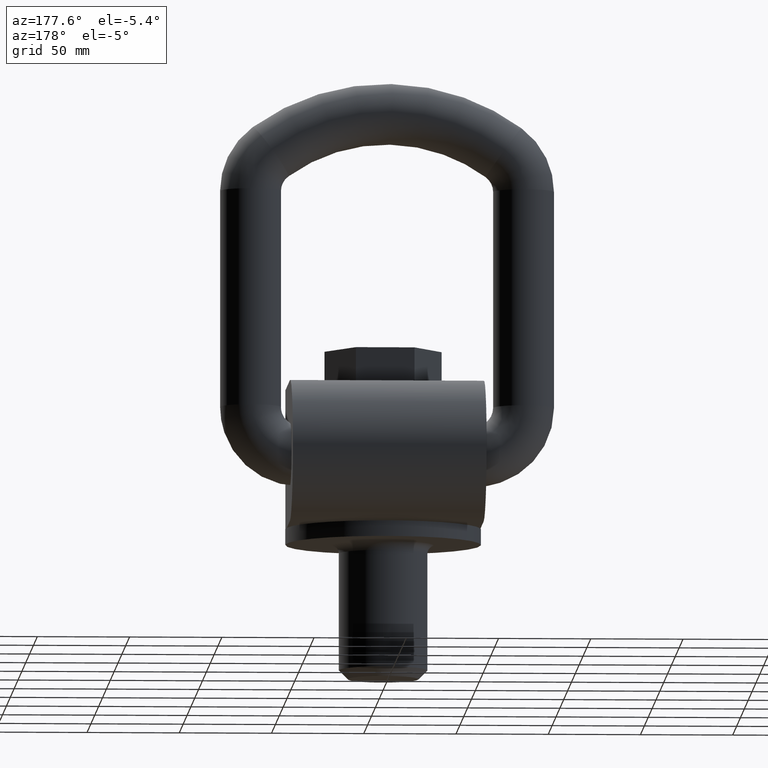
[diagram: clean part render]
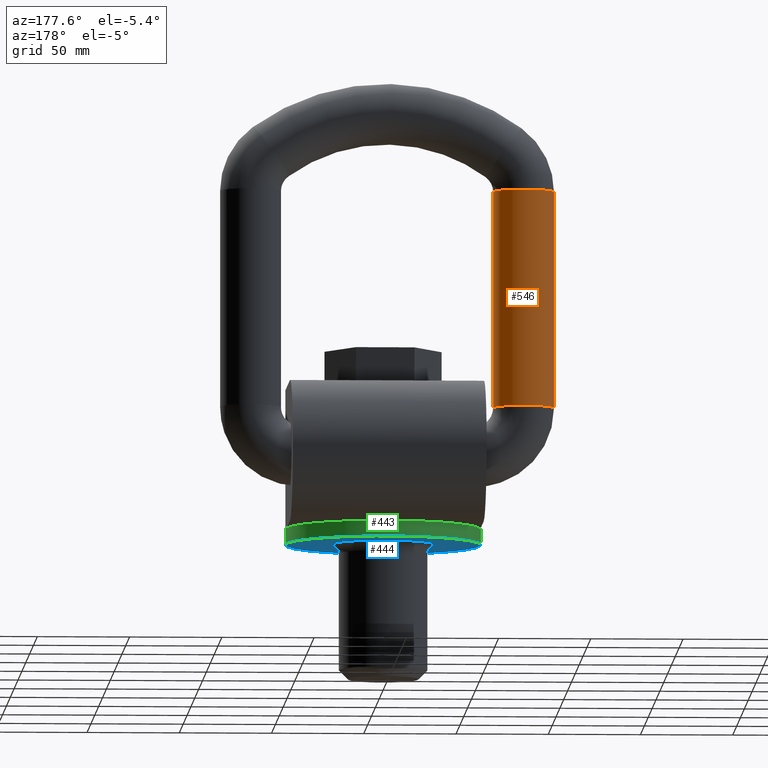
[diagram: same view with three faces highlighted in distinct colors, each labeled with its STEP entity id]
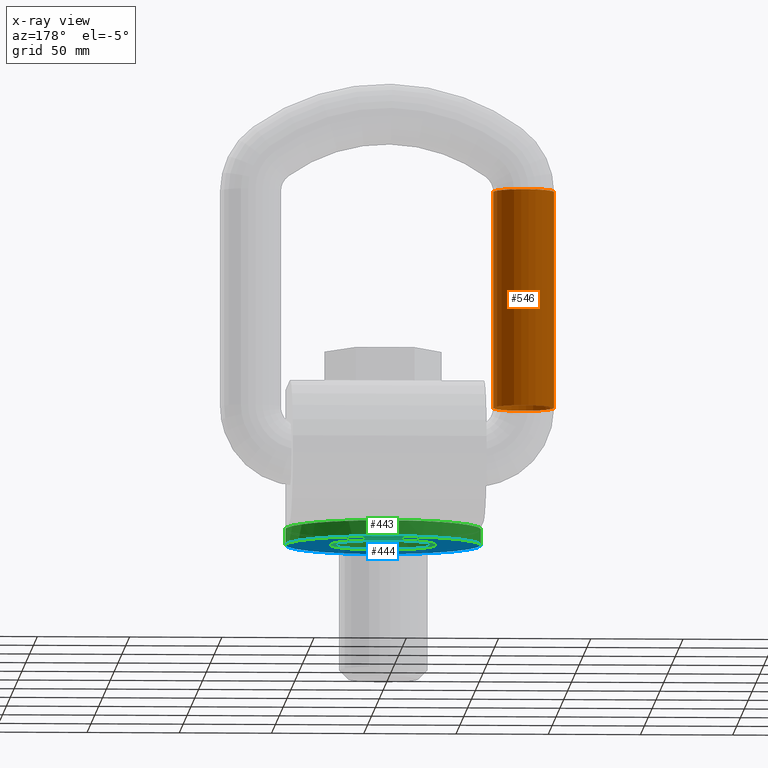
[diagram: x-ray of the same camera — body ghosted, the three highlighted faces saturated]
A machine part, auxiliary view with three faces highlighted in distinct colors.
The next image is the same camera in x-ray (body ghosted, the three faces saturated) — at least one of them is partly hidden behind the body in this view.
Their STEP definitions:

[orange] entity #546 — the highlighted cylindrical surface (bore or boss wall) has radius 16.5 mm, axis along (0, 0, -1).
#546=ADVANCED_FACE('',(#629,#630),#567,.T.);
#567=CYLINDRICAL_SURFACE('',#2625,16.5);
#629=FACE_BOUND('',#795,.T.);
#630=FACE_BOUND('',#796,.T.);
#795=EDGE_LOOP('',(#1775));
#796=EDGE_LOOP('',(#1776));
#1150=CIRCLE('',#2622,16.5);
#1151=CIRCLE('',#2624,16.5);
#1775=ORIENTED_EDGE('',*,*,#2311,.T.);
#1776=ORIENTED_EDGE('',*,*,#2310,.F.);
#1995=VERTEX_POINT('',#5114);
#1996=VERTEX_POINT('',#5117);
#2310=EDGE_CURVE('',#1995,#1995,#1150,.T.);
#2311=EDGE_CURVE('',#1996,#1996,#1151,.T.);
#2622=AXIS2_PLACEMENT_3D('',#5113,#3076,#3077);
#2624=AXIS2_PLACEMENT_3D('',#5116,#3080,#3081);
#2625=AXIS2_PLACEMENT_3D('',#5118,#3082,#3083);
#3076=DIRECTION('',(-1.66533453693773E-16,0.,-1.));
#3077=DIRECTION('',(-1.,0.,0.));
#3080=DIRECTION('',(-1.66533453693773E-16,0.,-1.));
#3081=DIRECTION('',(-1.,0.,0.));
#3082=DIRECTION('',(0.,0.,-1.));
#3083=DIRECTION('',(-1.,0.,0.));
#5113=CARTESIAN_POINT('',(-74.,51.,61.5));
#5114=CARTESIAN_POINT('',(-90.5,51.,61.5));
#5116=CARTESIAN_POINT('',(-74.,51.,178.992307237088));
#5117=CARTESIAN_POINT('',(-90.5,51.,178.992307237088));
#5118=CARTESIAN_POINT('',(-74.,51.,178.992307237088));

[blue] entity #444 — the highlighted planar face has unit normal (0, 0, -1).
#267=PLANE('',#2559);
#444=ADVANCED_FACE('',(#601,#602),#267,.T.);
#601=FACE_BOUND('',#679,.T.);
#602=FACE_BOUND('',#680,.T.);
#679=EDGE_LOOP('',(#1347));
#680=EDGE_LOOP('',(#1348));
#1140=CIRCLE('',#2555,53.);
#1142=CIRCLE('',#2558,28.8);
#1347=ORIENTED_EDGE('',*,*,#2132,.T.);
#1348=ORIENTED_EDGE('',*,*,#2130,.T.);
#1894=VERTEX_POINT('',#3900);
#1895=VERTEX_POINT('',#3904);
#2130=EDGE_CURVE('',#1894,#1894,#1140,.T.);
#2132=EDGE_CURVE('',#1895,#1895,#1142,.T.);
#2555=AXIS2_PLACEMENT_3D('',#3899,#2819,#2820);
#2558=AXIS2_PLACEMENT_3D('',#3903,#2825,#2826);
#2559=AXIS2_PLACEMENT_3D('',#3905,#2827,#2828);
#2819=DIRECTION('',(0.,0.,-1.));
#2820=DIRECTION('',(1.,1.22464679914735E-16,0.));
#2825=DIRECTION('',(0.,0.,1.));
#2826=DIRECTION('',(-1.,0.,0.));
#2827=DIRECTION('',(0.,0.,-1.));
#2828=DIRECTION('',(-1.,0.,0.));
#3899=CARTESIAN_POINT('',(0.,0.,-8.49999999999993));
#3900=CARTESIAN_POINT('',(53.,6.49062803548097E-15,-8.49999999999993));
#3903=CARTESIAN_POINT('',(0.,0.,-8.49999999999993));
#3904=CARTESIAN_POINT('',(-28.8,0.,-8.49999999999993));
#3905=CARTESIAN_POINT('',(0.,0.,-8.49999999999993));

[green] entity #443 — the highlighted cylindrical surface (bore or boss wall) has radius 53 mm, axis along (0, 0, 1).
#443=ADVANCED_FACE('',(#599,#600),#554,.T.);
#554=CYLINDRICAL_SURFACE('',#2557,53.);
#599=FACE_BOUND('',#677,.T.);
#600=FACE_BOUND('',#678,.T.);
#677=EDGE_LOOP('',(#1340));
#678=EDGE_LOOP('',(#1341,#1342,#1343,#1344,#1345,#1346));
#1131=CIRCLE('',#2521,53.);
#1132=CIRCLE('',#2523,53.);
#1133=CIRCLE('',#2525,53.);
#1138=CIRCLE('',#2551,53.);
#1139=CIRCLE('',#2553,53.);
#1140=CIRCLE('',#2555,53.);
#1141=CIRCLE('',#2556,53.);
#1340=ORIENTED_EDGE('',*,*,#2130,.F.);
#1341=ORIENTED_EDGE('',*,*,#2073,.T.);
#1342=ORIENTED_EDGE('',*,*,#2128,.T.);
#1343=ORIENTED_EDGE('',*,*,#2076,.T.);
#1344=ORIENTED_EDGE('',*,*,#2131,.T.);
#1345=ORIENTED_EDGE('',*,*,#2079,.T.);
#1346=ORIENTED_EDGE('',*,*,#2129,.T.);
#1858=VERTEX_POINT('',#3782);
#1859=VERTEX_POINT('',#3783);
#1860=VERTEX_POINT('',#3788);
#1861=VERTEX_POINT('',#3789);
#1863=VERTEX_POINT('',#3795);
#1864=VERTEX_POINT('',#3796);
#1894=VERTEX_POINT('',#3900);
#2073=EDGE_CURVE('',#1858,#1859,#1131,.T.);
#2076=EDGE_CURVE('',#1860,#1861,#1132,.T.);
#2079=EDGE_CURVE('',#1863,#1864,#1133,.T.);
#2128=EDGE_CURVE('',#1859,#1860,#1138,.T.);
#2129=EDGE_CURVE('',#1864,#1858,#1139,.T.);
#2130=EDGE_CURVE('',#1894,#1894,#1140,.T.);
#2131=EDGE_CURVE('',#1861,#1863,#1141,.T.);
#2521=AXIS2_PLACEMENT_3D('',#3781,#2703,#2704);
#2523=AXIS2_PLACEMENT_3D('',#3787,#2709,#2710);
#2525=AXIS2_PLACEMENT_3D('',#3794,#2715,#2716);
#2551=AXIS2_PLACEMENT_3D('',#3895,#2811,#2812);
#2553=AXIS2_PLACEMENT_3D('',#3897,#2815,#2816);
#2555=AXIS2_PLACEMENT_3D('',#3899,#2819,#2820);
#2556=AXIS2_PLACEMENT_3D('',#3901,#2821,#2822);
#2557=AXIS2_PLACEMENT_3D('',#3902,#2823,#2824);
#2703=DIRECTION('',(0.,0.,-1.));
#2704=DIRECTION('',(1.,1.22464679914735E-16,0.));
#2709=DIRECTION('',(0.,0.,-1.));
#2710=DIRECTION('',(1.,1.22464679914735E-16,0.));
#2715=DIRECTION('',(0.,0.,-1.));
#2716=DIRECTION('',(1.,1.22464679914735E-16,0.));
#2811=DIRECTION('',(0.,0.,-1.));
#2812=DIRECTION('',(1.,1.22464679914735E-16,0.));
#2815=DIRECTION('',(0.,0.,-1.));
#2816=DIRECTION('',(1.,1.22464679914735E-16,0.));
#2819=DIRECTION('',(0.,0.,-1.));
#2820=DIRECTION('',(1.,1.22464679914735E-16,0.));
#2821=DIRECTION('',(0.,0.,-1.));
#2822=DIRECTION('',(1.,1.22464679914735E-16,0.));
#2823=DIRECTION('',(0.,0.,1.));
#2824=DIRECTION('',(1.,0.,0.));
#3781=CARTESIAN_POINT('',(0.,0.,6.69539461904587E-14));
#3782=CARTESIAN_POINT('',(52.5,-7.262919523167,1.59074743239382E-16));
#3783=CARTESIAN_POINT('',(-52.5,-7.262919523167,1.59074743239382E-16));
#3787=CARTESIAN_POINT('',(0.,0.,6.69539461904587E-14));
#3788=CARTESIAN_POINT('',(-52.5,7.26291952316699,2.17913611927875E-15));
#3789=CARTESIAN_POINT('',(-20.795131641805,48.75,7.94860999328799E-15));
#3794=CARTESIAN_POINT('',(0.,0.,6.69539461904587E-14));
#3795=CARTESIAN_POINT('',(20.795131641805,48.75,7.94860999328799E-15));
#3796=CARTESIAN_POINT('',(52.5,7.26291952316699,6.69539461904587E-14));
#3895=CARTESIAN_POINT('',(0.,0.,6.69539461904587E-14));
#3897=CARTESIAN_POINT('',(0.,0.,6.69539461904587E-14));
#3899=CARTESIAN_POINT('',(0.,0.,-8.49999999999993));
#3900=CARTESIAN_POINT('',(53.,6.49062803548097E-15,-8.49999999999993));
#3901=CARTESIAN_POINT('',(0.,0.,6.69539461904587E-14));
#3902=CARTESIAN_POINT('',(0.,0.,-8.49999999999993));